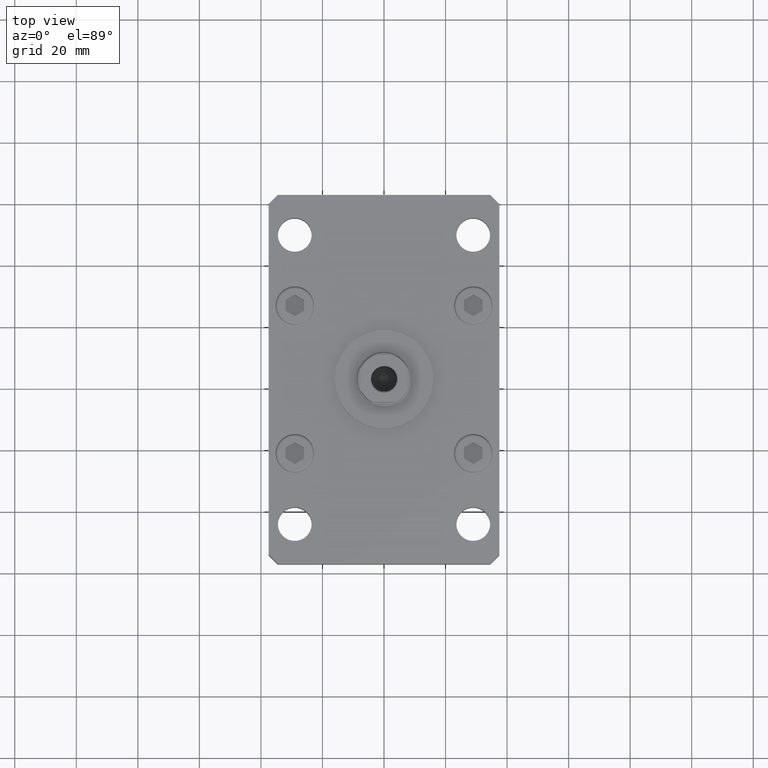
[diagram: clean part render]
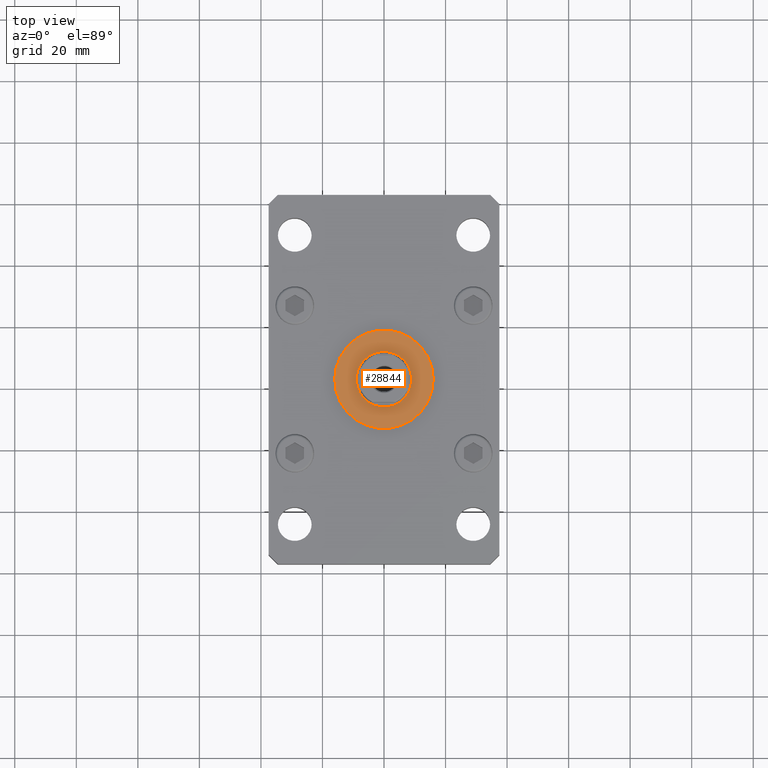
[diagram: same view with one face highlighted and labeled with its STEP entity id]
A machine part, top view. The second image highlights one B-rep face of the part: STEP entity #28844.
In plain terms, the highlighted planar face has unit normal (0, 0, 1).
Its self-contained STEP definition (entity closure, byte-faithful):
#651 = FACE_OUTER_BOUND ( 'NONE', #35538, .T. ) ;
#2216 = AXIS2_PLACEMENT_3D ( 'NONE', #30430, #13126, #17196 ) ;
#2746 = AXIS2_PLACEMENT_3D ( 'NONE', #33324, #7333, #36596 ) ;
#5786 = PLANE ( 'NONE',  #2216 ) ;
#7333 = DIRECTION ( 'NONE',  ( 0.000000000000000000, 0.000000000000000000, 1.000000000000000000 ) ) ;
#8709 = AXIS2_PLACEMENT_3D ( 'NONE', #14784, #9638, #13979 ) ;
#9638 = DIRECTION ( 'NONE',  ( 0.000000000000000000, 0.000000000000000000, 1.000000000000000000 ) ) ;
#9718 = CARTESIAN_POINT ( 'NONE',  ( -16.00000000000000000, 0.000000000000000000, 17.00000000000000000 ) ) ;
#13126 = DIRECTION ( 'NONE',  ( 0.000000000000000000, 0.000000000000000000, 1.000000000000000000 ) ) ;
#13979 = DIRECTION ( 'NONE',  ( 1.000000000000000000, 0.000000000000000000, 0.000000000000000000 ) ) ;
#14408 = EDGE_CURVE ( 'NONE', #35104, #38981, #49477, .T. ) ;
#14457 = ORIENTED_EDGE ( 'NONE', *, *, #48985, .F. ) ;
#14784 = CARTESIAN_POINT ( 'NONE',  ( 0.000000000000000000, 0.000000000000000000, 17.00000000000000000 ) ) ;
#16859 = EDGE_CURVE ( 'NONE', #43287, #51660, #48709, .T. ) ;
#17196 = DIRECTION ( 'NONE',  ( 1.000000000000000000, 0.000000000000000000, -0.000000000000000000 ) ) ;
#19901 = CARTESIAN_POINT ( 'NONE',  ( 16.00000000000000000, 1.959434878635765131E-15, 17.00000000000000000 ) ) ;
#20668 = DIRECTION ( 'NONE',  ( 0.000000000000000000, 0.000000000000000000, 1.000000000000000000 ) ) ;
#21251 = CIRCLE ( 'NONE', #40291, 16.00000000000000000 ) ;
#21834 = AXIS2_PLACEMENT_3D ( 'NONE', #35615, #35344, #52143 ) ;
#28590 = CIRCLE ( 'NONE', #8709, 9.000000000000000000 ) ;
#28844 = ADVANCED_FACE ( 'NONE', ( #38578, #651 ), #5786, .T. ) ;
#29886 = EDGE_CURVE ( 'NONE', #51660, #43287, #21251, .T. ) ;
#30430 = CARTESIAN_POINT ( 'NONE',  ( 0.000000000000000000, 0.000000000000000000, 17.00000000000000000 ) ) ;
#31413 = CARTESIAN_POINT ( 'NONE',  ( -9.000000000000000000, 1.102182119232617714E-15, 17.00000000000000000 ) ) ;
#32062 = CARTESIAN_POINT ( 'NONE',  ( 0.000000000000000000, 0.000000000000000000, 17.00000000000000000 ) ) ;
#32619 = CARTESIAN_POINT ( 'NONE',  ( 9.000000000000000000, 0.000000000000000000, 17.00000000000000000 ) ) ;
#33324 = CARTESIAN_POINT ( 'NONE',  ( 0.000000000000000000, 0.000000000000000000, 17.00000000000000000 ) ) ;
#35104 = VERTEX_POINT ( 'NONE', #32619 ) ;
#35344 = DIRECTION ( 'NONE',  ( 0.000000000000000000, 0.000000000000000000, 1.000000000000000000 ) ) ;
#35538 = EDGE_LOOP ( 'NONE', ( #53514, #41646 ) ) ;
#35615 = CARTESIAN_POINT ( 'NONE',  ( 0.000000000000000000, 0.000000000000000000, 17.00000000000000000 ) ) ;
#36596 = DIRECTION ( 'NONE',  ( 1.000000000000000000, 0.000000000000000000, 0.000000000000000000 ) ) ;
#38578 = FACE_BOUND ( 'NONE', #50731, .T. ) ;
#38981 = VERTEX_POINT ( 'NONE', #31413 ) ;
#40291 = AXIS2_PLACEMENT_3D ( 'NONE', #32062, #20668, #48611 ) ;
#41646 = ORIENTED_EDGE ( 'NONE', *, *, #16859, .T. ) ;
#42902 = ORIENTED_EDGE ( 'NONE', *, *, #14408, .F. ) ;
#43287 = VERTEX_POINT ( 'NONE', #19901 ) ;
#48611 = DIRECTION ( 'NONE',  ( 1.000000000000000000, 0.000000000000000000, 0.000000000000000000 ) ) ;
#48709 = CIRCLE ( 'NONE', #21834, 16.00000000000000000 ) ;
#48985 = EDGE_CURVE ( 'NONE', #38981, #35104, #28590, .T. ) ;
#49477 = CIRCLE ( 'NONE', #2746, 9.000000000000000000 ) ;
#50731 = EDGE_LOOP ( 'NONE', ( #42902, #14457 ) ) ;
#51660 = VERTEX_POINT ( 'NONE', #9718 ) ;
#52143 = DIRECTION ( 'NONE',  ( 1.000000000000000000, 0.000000000000000000, 0.000000000000000000 ) ) ;
#53514 = ORIENTED_EDGE ( 'NONE', *, *, #29886, .T. ) ;